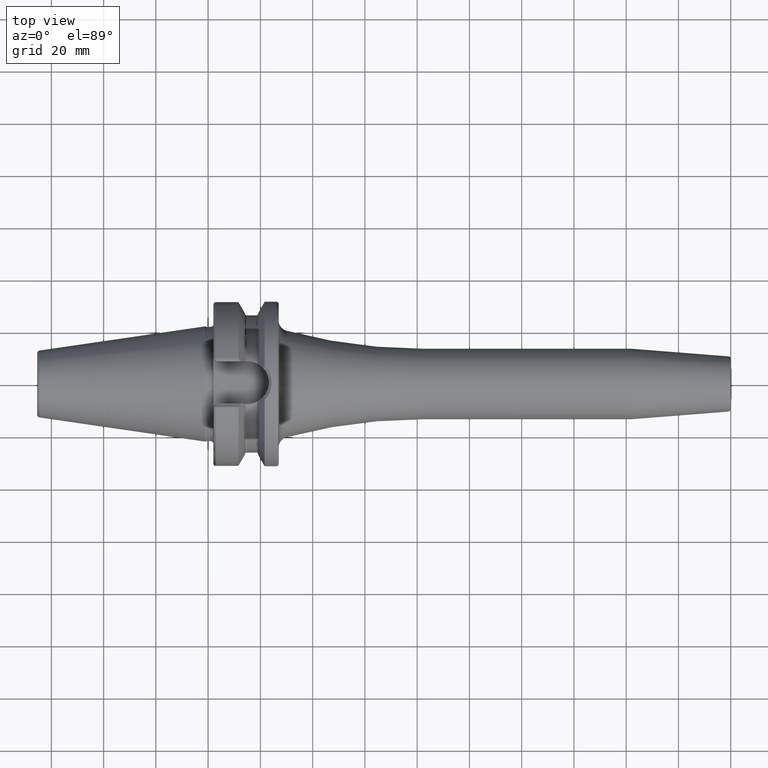
[diagram: clean part render]
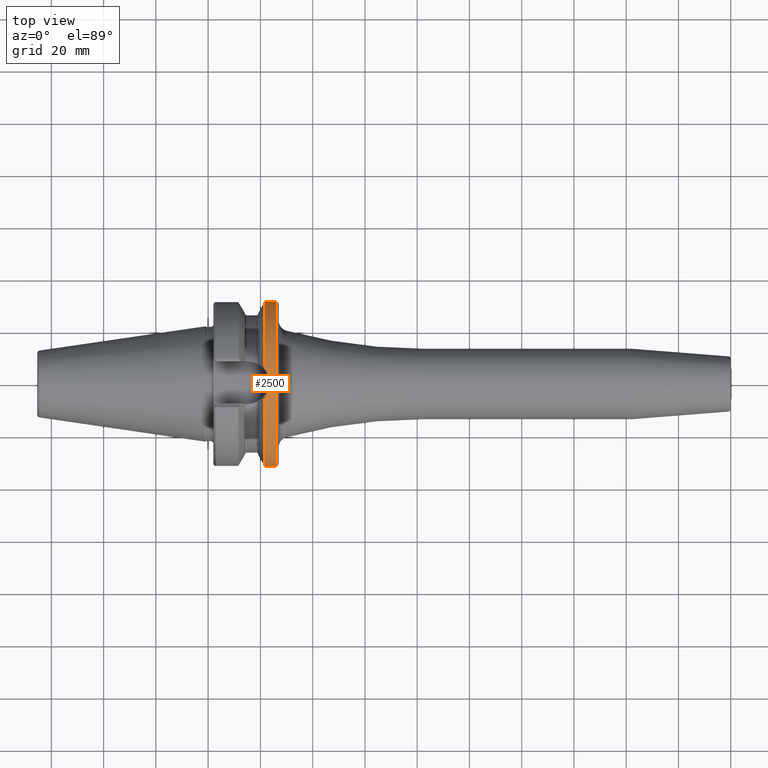
[diagram: same view with one face highlighted and labeled with its STEP entity id]
A machine part, top view. The second image highlights one B-rep face of the part: STEP entity #2500.
In plain terms, the highlighted cylindrical surface (partial cylindrical patch) has radius 31.4875 mm, axis along (1, 0, 0).
Its self-contained STEP definition (entity closure, byte-faithful):
#251=DIRECTION('',(-1.E0,0.E0,0.E0));
#252=VECTOR('',#251,4.372722531031E0);
#253=CARTESIAN_POINT('',(2.6E1,-3.14875E1,0.E0));
#254=LINE('',#253,#252);
#260=DIRECTION('',(-1.E0,0.E0,0.E0));
#261=VECTOR('',#260,4.372722531031E0);
#262=CARTESIAN_POINT('',(2.6E1,3.14875E1,0.E0));
#263=LINE('',#262,#261);
#787=CARTESIAN_POINT('',(2.162727746897E1,0.E0,0.E0));
#788=DIRECTION('',(1.E0,0.E0,0.E0));
#789=DIRECTION('',(0.E0,1.E0,0.E0));
#790=AXIS2_PLACEMENT_3D('',#787,#788,#789);
#792=CARTESIAN_POINT('',(2.6E1,0.E0,0.E0));
#793=DIRECTION('',(1.E0,0.E0,0.E0));
#794=DIRECTION('',(0.E0,1.E0,0.E0));
#795=AXIS2_PLACEMENT_3D('',#792,#793,#794);
#797=CARTESIAN_POINT('',(2.162727746897E1,0.E0,0.E0));
#798=DIRECTION('',(1.E0,0.E0,0.E0));
#799=DIRECTION('',(0.E0,-2.095835969751E-1,9.777907321503E-1));
#800=AXIS2_PLACEMENT_3D('',#797,#798,#799);
#802=CARTESIAN_POINT('',(2.162727746897E1,6.599266458023E0,3.078818504664E1));
#803=CARTESIAN_POINT('',(2.174833158986E1,6.472647497729E0,3.081532819542E1));
#804=CARTESIAN_POINT('',(2.224001076017E1,5.928319507915E0,3.092859425663E1));
#805=CARTESIAN_POINT('',(2.299264157127E1,4.865473008614E0,3.112101417878E1));
#806=CARTESIAN_POINT('',(2.370802134558E1,3.339564315076E0,3.132339202075E1));
#807=CARTESIAN_POINT('',(2.414652710220E1,1.714273004807E0,3.145540376701E1));
#808=CARTESIAN_POINT('',(2.429811527425E1,4.049253056535E-2,3.150243235345E1));
#809=CARTESIAN_POINT('',(2.416050694460E1,-1.633810434905E0,3.145971127167E1));
#810=CARTESIAN_POINT('',(2.373587321483E1,-3.262379309688E0,3.133159837426E1));
#811=CARTESIAN_POINT('',(2.303364301386E1,-4.794262913871E0,3.113217292109E1));
#812=CARTESIAN_POINT('',(2.227463190406E1,-5.886161097383E0,3.093695745132E1));
#813=CARTESIAN_POINT('',(2.176704574572E1,-6.453064676853E0,3.081952626248E1));
#814=CARTESIAN_POINT('',(2.162727746897E1,-6.599263509754E0,3.078818567858E1));
#1246=CARTESIAN_POINT('',(2.162727746897E1,3.14875E1,0.E0));
#1247=CARTESIAN_POINT('',(2.162727746897E1,6.599266458023E0,3.078818504664E1));
#1248=VERTEX_POINT('',#1246);
#1249=VERTEX_POINT('',#1247);
#1250=CARTESIAN_POINT('',(2.162727746897E1,-3.14875E1,0.E0));
#1252=VERTEX_POINT('',#1250);
#1254=CARTESIAN_POINT('',(2.6E1,3.14875E1,0.E0));
#1255=VERTEX_POINT('',#1254);
#1256=CARTESIAN_POINT('',(2.6E1,-3.14875E1,0.E0));
#1257=VERTEX_POINT('',#1256);
#1258=CARTESIAN_POINT('',(2.162727746897E1,-6.599263509754E0,3.078818567858E1));
#1259=VERTEX_POINT('',#1258);
#2485=CARTESIAN_POINT('',(-7.002E1,0.E0,0.E0));
#2486=DIRECTION('',(1.E0,0.E0,0.E0));
#2487=DIRECTION('',(0.E0,-1.E0,0.E0));
#2488=AXIS2_PLACEMENT_3D('',#2485,#2486,#2487);
#2489=CYLINDRICAL_SURFACE('',#2488,3.14875E1);
#2490=ORIENTED_EDGE('',*,*,#2399,.F.);
#2491=ORIENTED_EDGE('',*,*,#1785,.F.);
#2493=ORIENTED_EDGE('',*,*,#2492,.T.);
#2494=ORIENTED_EDGE('',*,*,#1781,.T.);
#2495=ORIENTED_EDGE('',*,*,#2412,.F.);
#2497=ORIENTED_EDGE('',*,*,#2496,.F.);
#2498=EDGE_LOOP('',(#2490,#2491,#2493,#2494,#2495,#2497));
#2499=FACE_OUTER_BOUND('',#2498,.F.);
#2500=ADVANCED_FACE('',(#2499),#2489,.T.);
#791=CIRCLE('',#790,3.14875E1);
#796=CIRCLE('',#795,3.14875E1);
#801=CIRCLE('',#800,3.14875E1);
#815=B_SPLINE_CURVE_WITH_KNOTS('',3,(#802,#803,#804,#805,#806,#807,#808,#809,
#810,#811,#812,#813,#814),.UNSPECIFIED.,.F.,.F.,(4,1,1,1,1,1,1,1,1,1,4),(0.E0,
3.624421393369E-2,1.514830587561E-1,2.667219035786E-1,3.819607484011E-1,
4.971995932235E-1,6.124384380460E-1,7.276772828685E-1,8.429161276909E-1,
9.581549725134E-1,1.E0),.UNSPECIFIED.);
#1781=EDGE_CURVE('',#1257,#1252,#254,.T.);
#1785=EDGE_CURVE('',#1255,#1248,#263,.T.);
#2399=EDGE_CURVE('',#1248,#1249,#791,.T.);
#2412=EDGE_CURVE('',#1259,#1252,#801,.T.);
#2492=EDGE_CURVE('',#1255,#1257,#796,.T.);
#2496=EDGE_CURVE('',#1249,#1259,#815,.T.);